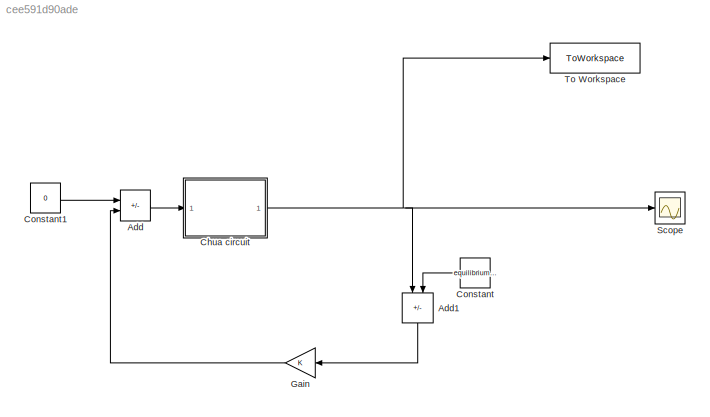
MODEL slx_cee591d90ade
KIND model
CONFIG AbsTol = auto
CONFIG EnableMultiTasking = off
CONFIG FixedStep = auto
CONFIG MaxStep = auto
CONFIG MinStep = auto
CONFIG RelTol = 1e-3
CONFIG SampleTimeConstraint = Unconstrained
CONFIG SolverName = VariableStepAuto
CONFIG StartTime = 0.0
CONFIG StopTime = tfin
BLOCK [Sum] Add
  IconShape = rectangular
  Inputs = +-
BLOCK [Sum] Add1
  IconShape = rectangular
  Inputs = +-
  NameLocation = left
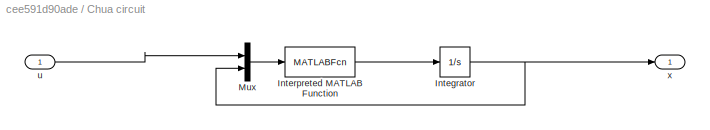
BLOCK [SubSystem] Chua circuit
BLOCK [Integrator] Chua circuit/Integrator
  InitialCondition = x0
BLOCK [MATLABFcn] Chua circuit/Interpreted MATLAB Function
  MATLABFcn = Chua(u)
BLOCK [Mux] Chua circuit/Mux
  DisplayOption = bar
  Inputs = 2
BLOCK [Inport] Chua circuit/u
BLOCK [Outport] Chua circuit/x
  VectorParamsAs1DForOutWhenUnconnected = off
BLOCK [Constant] Constant
  NameLocation = top
  Value = equilibrium_point
BLOCK [Constant] Constant1
  Value = 0
BLOCK [Gain] Gain
  Gain = K
  Multiplication = Matrix(K*u)
BLOCK [Scope] Scope
  Floating = off
  NumInputPorts = 1
  ScopeSpecificationString = Simulink.scopes.TimeScopeBlockCfg('CurrentConfiguration', extmgr.ConfigurationSet(extmgr.Configuration('Core','General UI',true),extmgr.Configuration('Core','Source UI',true),extmgr.Configuration('Sources','WiredSimulink',true),extmgr.Configuration('Visuals','Time Domain',true,'SerializedDisplays',{struct('MinYLimReal','-0.88176','MaxYLimReal','0.88244','YLabelReal','','MinYLimMag','0.00000','MaxY...<+1395ch>
BLOCK [ToWorkspace] To Workspace
  FixptAsFi = on
  MaxDataPoints = inf
  SampleTime = -1
  SaveFormat = Timeseries
  VariableName = chuaOutStable
LINE Add1:1 -> Gain:1
LINE Add:1 -> Chua circuit:1
NET Chua circuit/Integrator:1 -> Chua circuit/Mux:2, Chua circuit/x:1
LINE Chua circuit/Interpreted MATLAB Function:1 -> Chua circuit/Integrator:1
LINE Chua circuit/Mux:1 -> Chua circuit/Interpreted MATLAB Function:1
LINE Chua circuit/u:1 -> Chua circuit/Mux:1
NET Chua circuit:1 -> Add1:1, Scope:1, To Workspace:1
LINE Constant1:1 -> Add:1
LINE Constant:1 -> Add1:2
LINE Gain:1 -> Add:2
note: NET lines group one-source signal fan-out (src -> all destinations, sorted); 1:1 wires keep LINE
